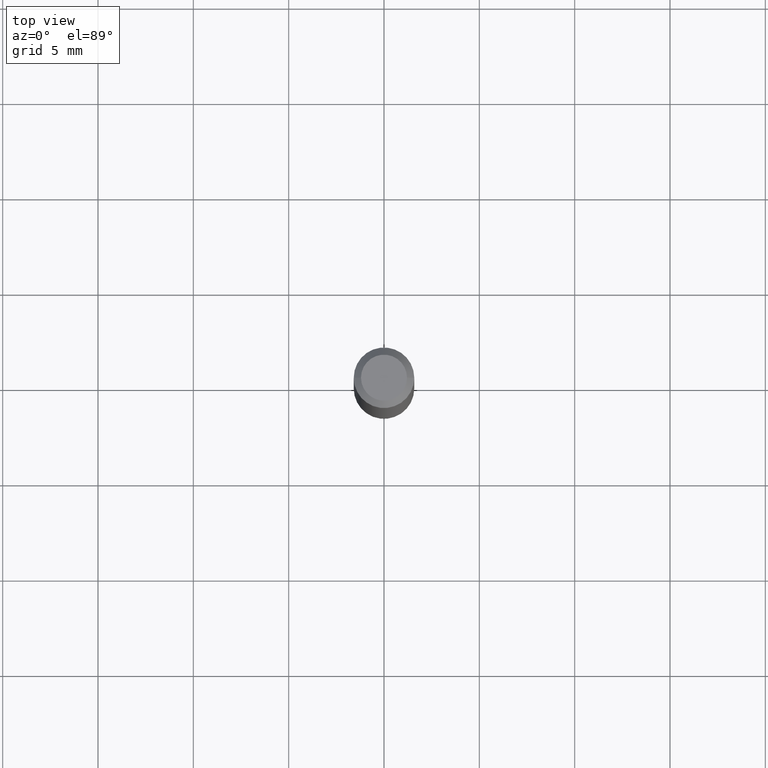
[diagram: clean part render]
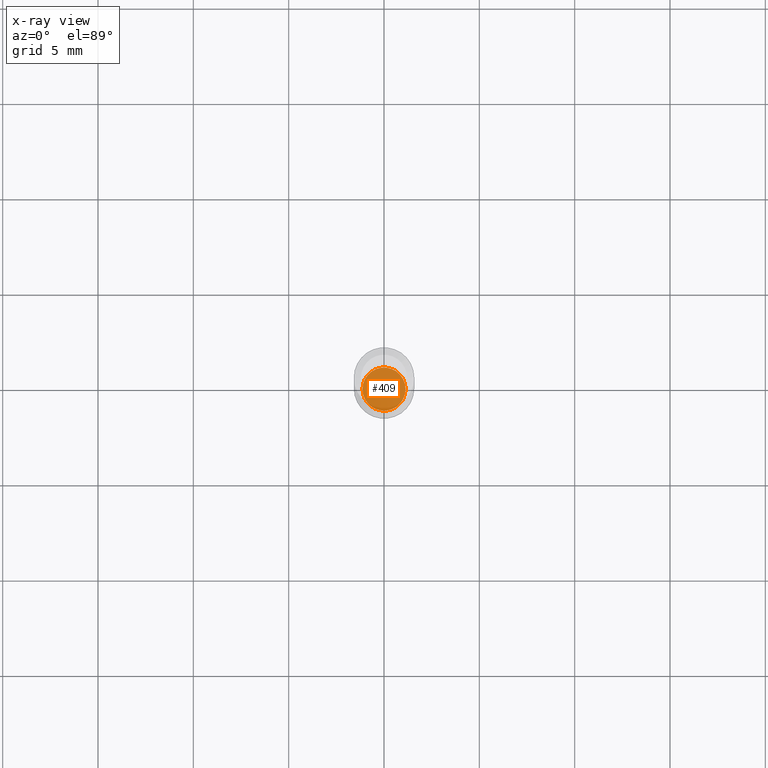
[diagram: x-ray — body ghosted, one internal face saturated and labeled with its STEP entity id]
A machine part, top view, then the same camera in x-ray: the body is ghosted and one INTERNAL B-rep face — a face not visible from any outside direction — is saturated and labeled: STEP entity #409.
In plain terms, the highlighted planar face has unit normal (-0, 0, 1).
Its self-contained STEP definition (entity closure, byte-faithful):
#28 = DIRECTION ( 'NONE',  ( 1.000000000000000000, -6.982962677686276177E-15, 0.000000000000000000 ) ) ;
#37 = CARTESIAN_POINT ( 'NONE',  ( 3.338064920442711836E-29, -4.765872027520893280E-15, -1.364999999999999991 ) ) ;
#47 = PLANE ( 'NONE',  #308 ) ;
#57 = ORIENTED_EDGE ( 'NONE', *, *, #230, .F. ) ;
#89 = FACE_OUTER_BOUND ( 'NONE', #446, .T. ) ;
#117 = VERTEX_POINT ( 'NONE', #457 ) ;
#169 = DIRECTION ( 'NONE',  ( -2.438088387897960049E-29, 3.491481338843145188E-15, 1.000000000000000000 ) ) ;
#192 = CARTESIAN_POINT ( 'NONE',  ( 3.338064920442711836E-29, -4.765872027520893280E-15, -1.364999999999999991 ) ) ;
#217 = DIRECTION ( 'NONE',  ( -2.445468806185136597E-29, 3.491481338843145583E-15, 1.000000000000000000 ) ) ;
#230 = EDGE_CURVE ( 'NONE', #292, #117, #387, .T. ) ;
#292 = VERTEX_POINT ( 'NONE', #511 ) ;
#308 = AXIS2_PLACEMENT_3D ( 'NONE', #494, #169, #451 ) ;
#325 = CIRCLE ( 'NONE', #351, 0.04450000000000001177 ) ;
#351 = AXIS2_PLACEMENT_3D ( 'NONE', #192, #217, #28 ) ;
#387 = CIRCLE ( 'NONE', #396, 0.04450000000000001177 ) ;
#392 = DIRECTION ( 'NONE',  ( 1.000000000000000000, -6.982962677686276177E-15, 0.000000000000000000 ) ) ;
#394 = DIRECTION ( 'NONE',  ( -2.445468806185136597E-29, 3.491481338843145583E-15, 1.000000000000000000 ) ) ;
#396 = AXIS2_PLACEMENT_3D ( 'NONE', #37, #394, #392 ) ;
#409 = ADVANCED_FACE ( 'NONE', ( #89 ), #47, .F. ) ;
#434 = ORIENTED_EDGE ( 'NONE', *, *, #458, .F. ) ;
#446 = EDGE_LOOP ( 'NONE', ( #434, #57 ) ) ;
#451 = DIRECTION ( 'NONE',  ( 1.000000000000000000, -6.982962677686265922E-15, 4.876176775795935793E-29 ) ) ;
#457 = CARTESIAN_POINT ( 'NONE',  ( 0.04450000000000001177, -5.076613866677932749E-15, -1.364999999999999991 ) ) ;
#458 = EDGE_CURVE ( 'NONE', #117, #292, #325, .T. ) ;
#494 = CARTESIAN_POINT ( 'NONE',  ( 3.338064920442711836E-29, -4.765872027520893280E-15, -1.364999999999999991 ) ) ;
#511 = CARTESIAN_POINT ( 'NONE',  ( -0.04450000000000001177, -4.447031282933537610E-15, -1.364999999999999991 ) ) ;